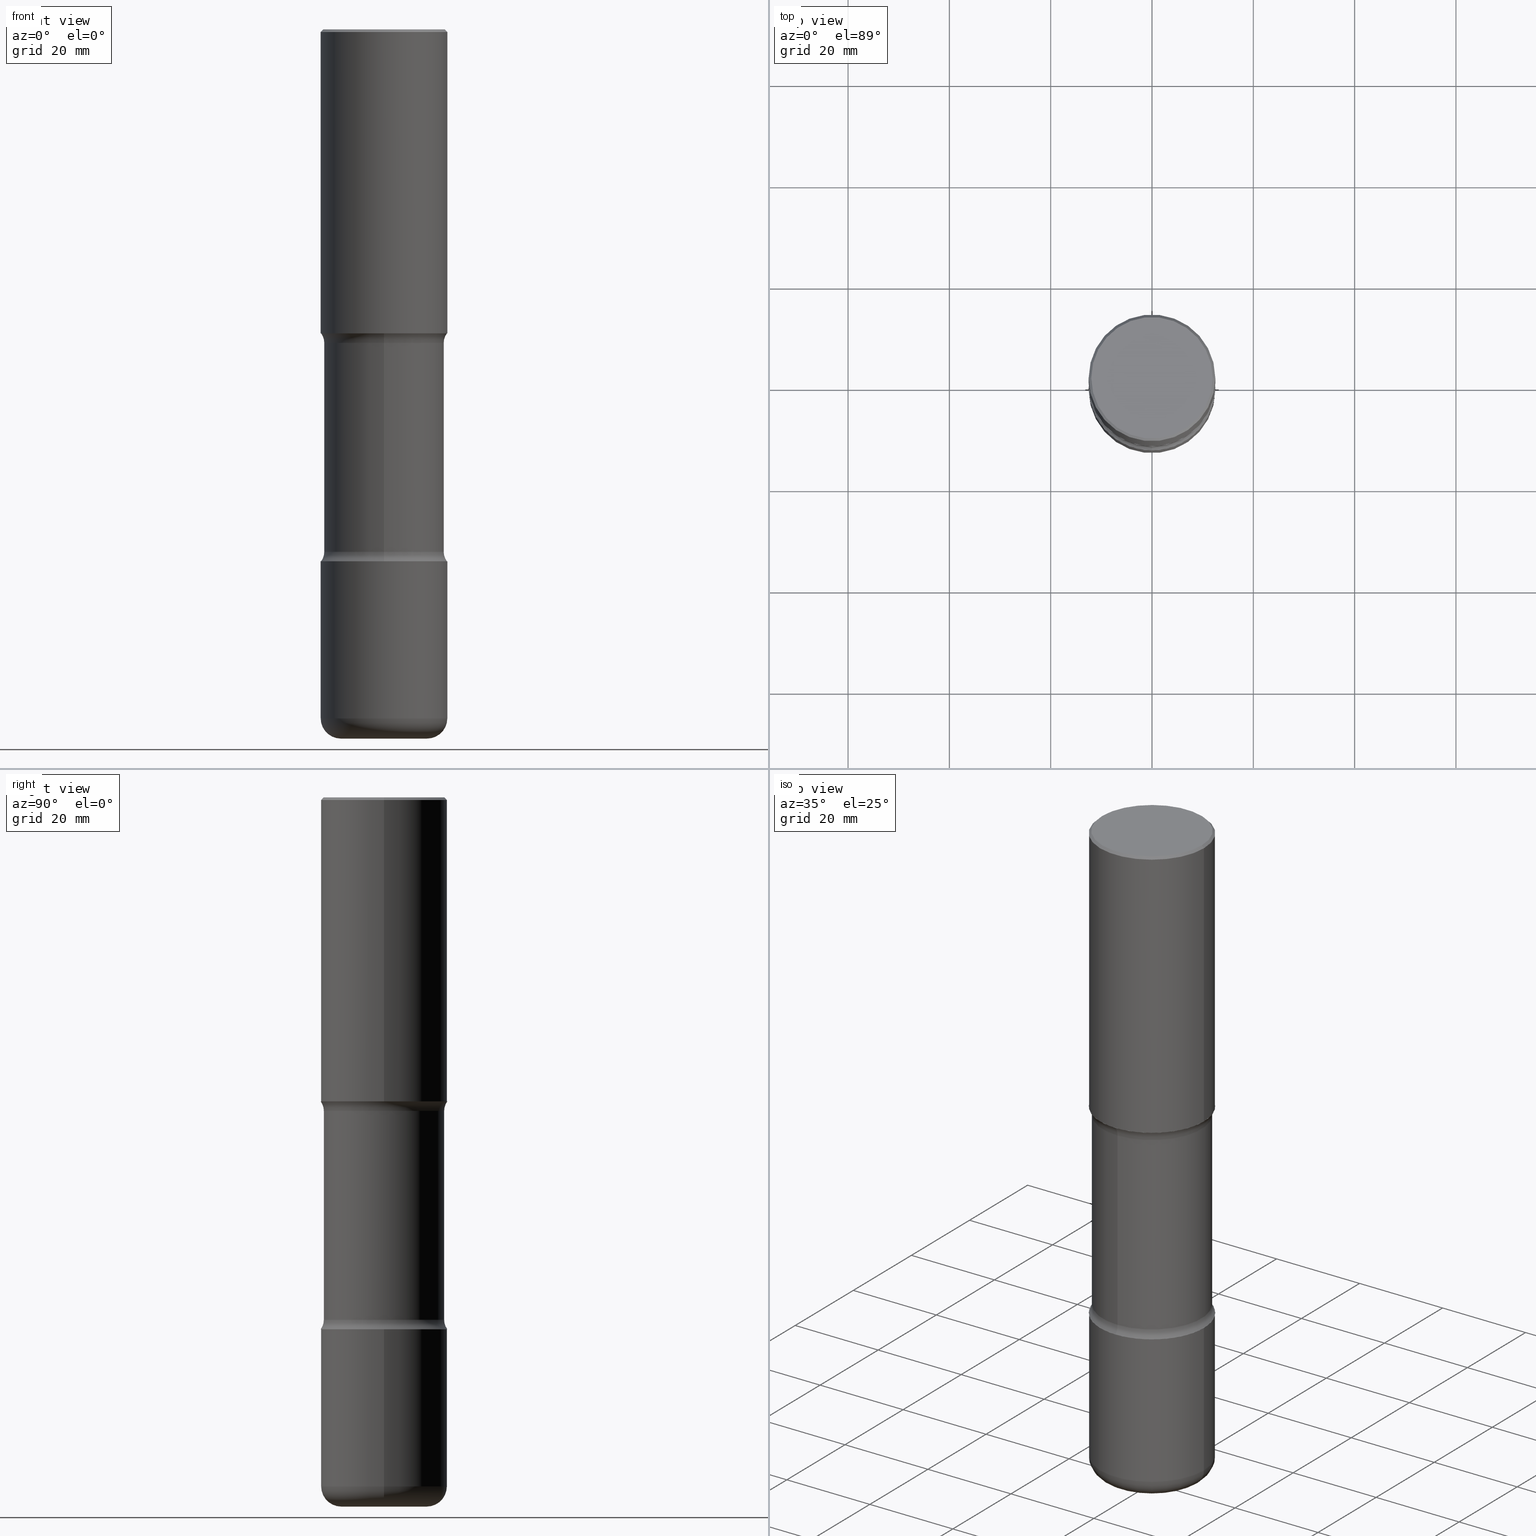
[diagram: canonical four-view strip — front | top / right | iso, engineering-drawing reading convention]
A machine part, canonical four-view strip (front | top / right | iso — engineering-drawing reading convention). The complete STEP part file that produces these views, byte-faithful:
ISO-10303-21;
HEADER;
FILE_DESCRIPTION (( 'STEP AP203' ),
    '1' );
FILE_NAME ('44695.STEP',
    '2024-03-02T02:36:05',
    ( '' ),
    ( '' ),
    'SwSTEP 2.0',
    'SolidWorks 2023',
    '' );
FILE_SCHEMA (( 'CONFIG_CONTROL_DESIGN' ));
ENDSEC;

DATA;
#1 = LINE ( 'NONE', #213, #54 ) ;
#2 = ORIENTED_EDGE ( 'NONE', *, *, #482, .F. ) ;
#3 = CARTESIAN_POINT ( 'NONE',  ( -3.291838451780624866E-15, -0.4675000000000141265, -4.059268949423745276 ) ) ;
#4 = VERTEX_POINT ( 'NONE', #79 ) ;
#5 = DIRECTION ( 'NONE',  ( -2.445468806185136597E-29, 3.491481338843145583E-15, 1.000000000000000000 ) ) ;
#6 = EDGE_CURVE ( 'NONE', #461, #4, #110, .T. ) ;
#7 = DIRECTION ( 'NONE',  ( 2.438088387897960049E-29, -3.491481338843145188E-15, -1.000000000000000000 ) ) ;
#8 = EDGE_CURVE ( 'NONE', #421, #188, #152, .T. ) ;
#9 = DATE_AND_TIME ( #314, #560 ) ;
#10 = AXIS2_PLACEMENT_3D ( 'NONE', #337, #134, #478 ) ;
#11 = CARTESIAN_POINT ( 'NONE',  ( -0.4721500000000000696, 3.331920641658002013E-15, 1.280553747027805488E-17 ) ) ;
#12 = AXIS2_PLACEMENT_3D ( 'NONE', #103, #187, #309 ) ;
#13 = CARTESIAN_POINT ( 'NONE',  ( 3.264535051818464504E-15, 0.4674999999999808198, -5.511800000000000921 ) ) ;
#14 = DIRECTION ( 'NONE',  ( 2.529115312138246887E-29, -3.371694781454833941E-15, -1.000000000000000000 ) ) ;
#15 = DIRECTION ( 'NONE',  ( 1.000000000000000000, -6.982962677686265922E-15, 0.000000000000000000 ) ) ;
#16 = PLANE ( 'NONE',  #338 ) ;
#17 = CIRCLE ( 'NONE', #355, 0.1250000000000001110 ) ;
#18 = FACE_OUTER_BOUND ( 'NONE', #189, .T. ) ;
#19 = VECTOR ( 'NONE', #485, 39.37007874015748143 ) ;
#20 = PERSON ( 'UNSPECIFIED', 'UNSPECIFIED', 'UNSPECIFIED', ('UNSPECIFIED'), ('UNSPECIFIED'), ('UNSPECIFIED') ) ;
#21 = DIRECTION ( 'NONE',  ( 1.000000000000000000, -6.982962677686265922E-15, 4.876176775795935793E-29 ) ) ;
#22 = DIRECTION ( 'NONE',  ( 1.000000000000000000, -6.860497997771530774E-15, 4.842265841865007537E-29 ) ) ;
#23 = VERTEX_POINT ( 'NONE', #102 ) ;
#24 = MANIFOLD_SOLID_BREP ( 'Body-Move/Copy2[2]', #336 ) ;
#25 = PLANE ( 'NONE',  #30 ) ;
#26 = EDGE_CURVE ( 'NONE', #72, #298, #401, .T. ) ;
#27 = ORIENTED_EDGE ( 'NONE', *, *, #455, .T. ) ;
#28 = AXIS2_PLACEMENT_3D ( 'NONE', #316, #226, #258 ) ;
#29 = ORIENTED_EDGE ( 'NONE', *, *, #304, .F. ) ;
#30 = AXIS2_PLACEMENT_3D ( 'NONE', #457, #118, #231 ) ;
#31 = MECHANICAL_CONTEXT ( 'NONE', #128, 'mechanical' ) ;
#32 = DIMENSIONAL_EXPONENTS ( 1.000000000000000000, 0.000000000000000000, 0.000000000000000000, 0.000000000000000000, 0.000000000000000000, 0.000000000000000000, 0.000000000000000000 ) ;
#33 = DATE_AND_TIME ( #463, #241 ) ;
#34 = DATE_AND_TIME ( #414, #412 ) ;
#35 = DIRECTION ( 'NONE',  ( -2.445468806185136597E-29, 3.491481338843145583E-15, 1.000000000000000000 ) ) ;
#36 = APPROVAL_PERSON_ORGANIZATION ( #80, #206, #193 ) ;
#37 = AXIS2_PLACEMENT_3D ( 'NONE', #524, #7, #165 ) ;
#38 =( GEOMETRIC_REPRESENTATION_CONTEXT ( 3 ) GLOBAL_UNCERTAINTY_ASSIGNED_CONTEXT ( ( #208 ) ) GLOBAL_UNIT_ASSIGNED_CONTEXT ( ( #408, #234, #544 ) ) REPRESENTATION_CONTEXT ( 'NONE', 'WORKASPACE' ) );
#39 = VERTEX_POINT ( 'NONE', #156 ) ;
#40 = EDGE_LOOP ( 'NONE', ( #425, #43, #214, #109 ) ) ;
#41 = EDGE_CURVE ( 'NONE', #541, #23, #17, .T. ) ;
#42 = DIRECTION ( 'NONE',  ( 6.982962677686266711E-15, 1.000000000000000000, -3.506115072082477581E-15 ) ) ;
#43 = ORIENTED_EDGE ( 'NONE', *, *, #507, .T. ) ;
#44 = DIRECTION ( 'NONE',  ( -0.7071067811865471286, 2.468850131082252722E-15, -0.7071067811865479058 ) ) ;
#45 = CARTESIAN_POINT ( 'NONE',  ( 1.359419985113462274E-28, -1.907928096735455584E-14, -5.511800000000000033 ) ) ;
#46 = AXIS2_PLACEMENT_3D ( 'NONE', #520, #557, #295 ) ;
#47 = EDGE_LOOP ( 'NONE', ( #229, #405, #546, #342 ) ) ;
#48 = CIRCLE ( 'NONE', #392, 0.4721500000000000696 ) ;
#49 = FACE_OUTER_BOUND ( 'NONE', #186, .T. ) ;
#50 = ORIENTED_EDGE ( 'NONE', *, *, #8, .F. ) ;
#51 = CARTESIAN_POINT ( 'NONE',  ( 0.3346500000000002806, -2.158119530352335944E-14, -5.511800000000000033 ) ) ;
#52 = CARTESIAN_POINT ( 'NONE',  ( 1.309377362895707575E-28, -1.869443853256785386E-14, -5.354300000000000281 ) ) ;
#53 = DIRECTION ( 'NONE',  ( 2.529115312138246887E-29, -3.371694781454833941E-15, -1.000000000000000000 ) ) ;
#54 = VECTOR ( 'NONE', #248, 39.37007874015748143 ) ;
#55 = CARTESIAN_POINT ( 'NONE',  ( -3.376394089603205408E-15, -0.4921500000000088582, -2.362199999999998301 ) ) ;
#56 = EDGE_CURVE ( 'NONE', #114, #211, #160, .T. ) ;
#57 = AXIS2_PLACEMENT_3D ( 'NONE', #396, #393, #15 ) ;
#58 = FACE_OUTER_BOUND ( 'NONE', #249, .T. ) ;
#59 = ORIENTED_EDGE ( 'NONE', *, *, #26, .F. ) ;
#60 = EDGE_CURVE ( 'NONE', #72, #339, #540, .T. ) ;
#61 = CARTESIAN_POINT ( 'NONE',  ( -0.3346500000000002806, -1.631660726734667620E-14, -5.354300000000000281 ) ) ;
#62 = DIRECTION ( 'NONE',  ( -1.000000000000000000, 6.982962677686265922E-15, 0.000000000000000000 ) ) ;
#63 = DIRECTION ( 'NONE',  ( -1.000000000000000000, 7.105427357601005014E-15, 0.000000000000000000 ) ) ;
#64 = DIRECTION ( 'NONE',  ( 6.982962677686266711E-15, 1.000000000000000000, -3.371694781454834335E-15 ) ) ;
#65 = LOCAL_TIME ( 21, 36, 5.000000000000000000, #481 ) ;
#66 = CYLINDRICAL_SURFACE ( 'NONE', #326, 0.4921500000000002539 ) ;
#67 = AXIS2_PLACEMENT_3D ( 'NONE', #418, #22, #366 ) ;
#68 = CARTESIAN_POINT ( 'NONE',  ( 5.628498264023999301E-29, -8.459791083684410313E-15, -2.362199999999999633 ) ) ;
#69 = CIRCLE ( 'NONE', #190, 0.1574999999999998346 ) ;
#70 = ORIENTED_EDGE ( 'NONE', *, *, #288, .F. ) ;
#71 = LENGTH_MEASURE_WITH_UNIT ( LENGTH_MEASURE( 0.02539999999999999897 ), #539 );
#72 = VERTEX_POINT ( 'NONE', #475 ) ;
#73 = EDGE_LOOP ( 'NONE', ( #91, #407, #367, #59 ) ) ;
#74 = CIRCLE ( 'NONE', #10, 0.1250000000000000278 ) ;
#75 = VECTOR ( 'NONE', #489, 39.37007874015748143 ) ;
#76 = APPROVAL_STATUS ( 'not_yet_approved' ) ;
#77 = ADVANCED_FACE ( 'NONE', ( #49 ), #217, .F. ) ;
#78 = APPLICATION_PROTOCOL_DEFINITION ( 'international standard', 'config_control_design', 1994, #128 ) ;
#79 = CARTESIAN_POINT ( 'NONE',  ( 0.4921500000000002539, -2.213110361439115437E-14, -5.354300000000000281 ) ) ;
#80 = PERSON_AND_ORGANIZATION ( #20, #218 ) ;
#81 = AXIS2_PLACEMENT_3D ( 'NONE', #45, #53, #376 ) ;
#82 = AXIS2_PLACEMENT_3D ( 'NONE', #277, #416, #505 ) ;
#83 = VERTEX_POINT ( 'NONE', #286 ) ;
#84 = DIRECTION ( 'NONE',  ( 1.000000000000000000, -6.982962677686266711E-15, 4.876176775795935232E-29 ) ) ;
#85 = PERSON_AND_ORGANIZATION_ROLE ( 'design_supplier' ) ;
#86 = FACE_OUTER_BOUND ( 'NONE', #283, .T. ) ;
#87 = ADVANCED_FACE ( 'NONE', ( #386 ), #325, .T. ) ;
#88 = DATE_TIME_ROLE ( 'creation_date' ) ;
#89 = EDGE_LOOP ( 'NONE', ( #126, #27, #253, #509 ) ) ;
#90 = FACE_OUTER_BOUND ( 'NONE', #452, .T. ) ;
#91 = ORIENTED_EDGE ( 'NONE', *, *, #455, .F. ) ;
#92 = LINE ( 'NONE', #519, #429 ) ;
#93 = DIRECTION ( 'NONE',  ( 2.529115312138246887E-29, -3.371694781454833941E-15, -1.000000000000000000 ) ) ;
#94 = APPROVAL_PERSON_ORGANIZATION ( #472, #184, #254 ) ;
#95 = ORIENTED_EDGE ( 'NONE', *, *, #245, .T. ) ;
#96 = AXIS2_PLACEMENT_3D ( 'NONE', #399, #445, #62 ) ;
#97 = CARTESIAN_POINT ( 'NONE',  ( -0.3346500000000002806, -1.603200901836949407E-14, -5.511800000000000033 ) ) ;
#98 = ORIENTED_EDGE ( 'NONE', *, *, #464, .T. ) ;
#99 = DIRECTION ( 'NONE',  ( -2.445468806185136877E-29, 3.491481338843145188E-15, 1.000000000000000000 ) ) ;
#100 = CARTESIAN_POINT ( 'NONE',  ( 0.000000000000000000, 0.000000000000000000, 0.000000000000000000 ) ) ;
#101 = FACE_OUTER_BOUND ( 'NONE', #89, .T. ) ;
#102 = CARTESIAN_POINT ( 'NONE',  ( 3.264535051818428216E-15, 0.4674999999999857048, -4.059268949423747941 ) ) ;
#103 = CARTESIAN_POINT ( 'NONE',  ( 1.010907895100811684E-28, -1.443308555850979562E-14, -4.133799999999999919 ) ) ;
#104 = AXIS2_PLACEMENT_3D ( 'NONE', #68, #269, #111 ) ;
#105 = CARTESIAN_POINT ( 'NONE',  ( 4.890937612370289799E-31, -6.982962677686315028E-17, -0.02000000000000006981 ) ) ;
#106 = DIRECTION ( 'NONE',  ( -2.445468806185136597E-29, 3.491481338843145583E-15, 1.000000000000000000 ) ) ;
#107 = CC_DESIGN_PERSON_AND_ORGANIZATION_ASSIGNMENT ( #275, #413, ( #276 ) ) ;
#108 = CARTESIAN_POINT ( 'NONE',  ( 5.816995885266152861E-29, -8.711087037968711425E-15, -2.436731050576253388 ) ) ;
#109 = ORIENTED_EDGE ( 'NONE', *, *, #464, .F. ) ;
#110 = CIRCLE ( 'NONE', #135, 0.4921500000000003094 ) ;
#111 = DIRECTION ( 'NONE',  ( 6.982962677686265922E-15, 1.000000000000000000, -3.330506545156063496E-15 ) ) ;
#112 = TOROIDAL_SURFACE ( 'NONE', #503, 0.5925000000000001377, 0.1250000000000001110 ) ;
#113 = EDGE_LOOP ( 'NONE', ( #150, #387 ) ) ;
#114 = VERTEX_POINT ( 'NONE', #97 ) ;
#115 = AXIS2_PLACEMENT_3D ( 'NONE', #244, #252, #434 ) ;
#116 = AXIS2_PLACEMENT_3D ( 'NONE', #428, #289, #130 ) ;
#117 = CIRCLE ( 'NONE', #116, 0.4921500000000002539 ) ;
#118 = DIRECTION ( 'NONE',  ( 2.438088387897960049E-29, -3.491481338843145188E-15, -1.000000000000000000 ) ) ;
#119 = APPROVAL_DATE_TIME ( #158, #206 ) ;
#120 = CARTESIAN_POINT ( 'NONE',  ( 4.137405386529212738E-15, 0.5924999999999858158, -4.059268949423748829 ) ) ;
#121 = ORIENTED_EDGE ( 'NONE', *, *, #41, .T. ) ;
#122 = EDGE_CURVE ( 'NONE', #461, #410, #1, .T. ) ;
#123 = ORIENTED_EDGE ( 'NONE', *, *, #551, .F. ) ;
#124 = CARTESIAN_POINT ( 'NONE',  ( 0.4921500000000002539, -1.168424230043857383E-14, -2.362199999999999633 ) ) ;
#125 = AXIS2_PLACEMENT_3D ( 'NONE', #108, #360, #263 ) ;
#126 = ORIENTED_EDGE ( 'NONE', *, *, #327, .F. ) ;
#127 = CARTESIAN_POINT ( 'NONE',  ( 1.347893496593123646E-28, -1.924434684343564878E-14, -5.511800000000000033 ) ) ;
#128 = APPLICATION_CONTEXT ( 'configuration controlled 3d designs of mechanical parts and assemblies' ) ;
#129 = ORIENTED_EDGE ( 'NONE', *, *, #56, .T. ) ;
#130 = DIRECTION ( 'NONE',  ( 1.000000000000000000, -6.982962677686263555E-15, 0.000000000000000000 ) ) ;
#131 = FACE_OUTER_BOUND ( 'NONE', #265, .T. ) ;
#132 = ORIENTED_EDGE ( 'NONE', *, *, #6, .T. ) ;
#133 = PLANE ( 'NONE',  #543 ) ;
#134 = DIRECTION ( 'NONE',  ( 1.000000000000000000, -6.860497997771530774E-15, 4.842265841865007537E-29 ) ) ;
#135 = AXIS2_PLACEMENT_3D ( 'NONE', #518, #251, #240 ) ;
#136 = CIRCLE ( 'NONE', #104, 0.4921500000000003650 ) ;
#137 = CARTESIAN_POINT ( 'NONE',  ( 9.920581329765965517E-29, -1.418178960422549608E-14, -4.059268949423747053 ) ) ;
#138 = EDGE_CURVE ( 'NONE', #421, #541, #522, .T. ) ;
#139 = DIRECTION ( 'NONE',  ( 2.529115312138246887E-29, -3.371694781454833941E-15, -1.000000000000000000 ) ) ;
#140 = CYLINDRICAL_SURFACE ( 'NONE', #533, 0.4921500000000001984 ) ;
#141 = DESIGN_CONTEXT ( 'detailed design', #243, 'design' ) ;
#142 = DIRECTION ( 'NONE',  ( -2.438088387897960049E-29, 3.491481338843145188E-15, 1.000000000000000000 ) ) ;
#143 = FACE_OUTER_BOUND ( 'NONE', #40, .T. ) ;
#144 = CIRCLE ( 'NONE', #12, 0.4921500000000001984 ) ;
#145 = CARTESIAN_POINT ( 'NONE',  ( 5.815876828890441734E-29, -8.712689590391461235E-15, -2.436731050576253388 ) ) ;
#146 = EDGE_LOOP ( 'NONE', ( #345, #330, #287, #553 ) ) ;
#147 = FACE_OUTER_BOUND ( 'NONE', #433, .T. ) ;
#148 = EDGE_LOOP ( 'NONE', ( #232, #451, #70, #123 ) ) ;
#149 = APPROVAL_DATE_TIME ( #34, #490 ) ;
#150 = ORIENTED_EDGE ( 'NONE', *, *, #224, .F. ) ;
#151 = DIRECTION ( 'NONE',  ( -6.982962677686266711E-15, -1.000000000000000000, 3.491481338843145583E-15 ) ) ;
#152 = CIRCLE ( 'NONE', #67, 0.1250000000000001110 ) ;
#153 = AXIS2_PLACEMENT_3D ( 'NONE', #547, #458, #365 ) ;
#154 = VERTEX_POINT ( 'NONE', #124 ) ;
#155 = ADVANCED_FACE ( 'NONE', ( #86 ), #436, .T. ) ;
#156 = CARTESIAN_POINT ( 'NONE',  ( 0.4721500000000000696, -3.342703923013975763E-15, 1.280553747032445131E-17 ) ) ;
#157 = ORIENTED_EDGE ( 'NONE', *, *, #138, .T. ) ;
#158 = DATE_AND_TIME ( #423, #162 ) ;
#159 = FACE_OUTER_BOUND ( 'NONE', #113, .T. ) ;
#160 = CIRCLE ( 'NONE', #372, 0.3346500000000002806 ) ;
#161 = VECTOR ( 'NONE', #488, 39.37007874015748143 ) ;
#162 = LOCAL_TIME ( 21, 36, 5.000000000000000000, #313 ) ;
#163 = ORIENTED_EDGE ( 'NONE', *, *, #200, .T. ) ;
#164 = ADVANCED_FACE ( 'NONE', ( #131 ), #346, .F. ) ;
#165 = DIRECTION ( 'NONE',  ( -1.000000000000000000, 6.982962677686265922E-15, -4.876176775795935793E-29 ) ) ;
#166 = PRODUCT_DEFINITION_SHAPE ( 'NONE', 'NONE',  #268 ) ;
#167 = ORIENTED_EDGE ( 'NONE', *, *, #329, .T. ) ;
#168 = DIRECTION ( 'NONE',  ( 6.982962677686266711E-15, 1.000000000000000000, -3.506115072082477581E-15 ) ) ;
#169 = CC_DESIGN_APPROVAL ( #490, ( #268 ) ) ;
#170 = EDGE_LOOP ( 'NONE', ( #29, #242 ) ) ;
#171 = DIRECTION ( 'NONE',  ( -2.445468806185136597E-29, 3.491481338843145583E-15, 1.000000000000000000 ) ) ;
#172 = EDGE_LOOP ( 'NONE', ( #2, #377 ) ) ;
#173 = LINE ( 'NONE', #344, #278 ) ;
#174 = ORIENTED_EDGE ( 'NONE', *, *, #245, .F. ) ;
#175 = DIRECTION ( 'NONE',  ( -1.000000000000000000, 6.982962677686265922E-15, 0.000000000000000000 ) ) ;
#176 = AXIS2_PLACEMENT_3D ( 'NONE', #341, #256, #430 ) ;
#177 = DIRECTION ( 'NONE',  ( 7.105427357601001859E-15, 1.000000000000000000, -3.491481338843145583E-15 ) ) ;
#178 = CARTESIAN_POINT ( 'NONE',  ( -3.207282813958053791E-15, -0.4675000000000189004, -5.511799999999999145 ) ) ;
#179 = DIRECTION ( 'NONE',  ( 6.982962677686265922E-15, 1.000000000000000000, -2.337410048054985186E-15 ) ) ;
#180 = DIRECTION ( 'NONE',  ( -2.529115312138246887E-29, 3.371694781454833546E-15, 1.000000000000000000 ) ) ;
#181 = TOROIDAL_SURFACE ( 'NONE', #28, 0.3346500000000002806, 0.1574999999999998346 ) ;
#182 = CIRCLE ( 'NONE', #373, 0.4921500000000001984 ) ;
#183 = DIRECTION ( 'NONE',  ( -2.445468806185136597E-29, 3.491481338843145583E-15, 1.000000000000000000 ) ) ;
#184 = APPROVAL ( #517, 'UNSPECIFIED' ) ;
#185 = CYLINDRICAL_SURFACE ( 'NONE', #227, 0.4921500000000001984 ) ;
#186 = EDGE_LOOP ( 'NONE', ( #442, #538, #270, #555 ) ) ;
#187 = DIRECTION ( 'NONE',  ( -2.445468806185136597E-29, 3.491481338843145583E-15, 1.000000000000000000 ) ) ;
#188 = VERTEX_POINT ( 'NONE', #3 ) ;
#189 = EDGE_LOOP ( 'NONE', ( #370, #492, #98, #427 ) ) ;
#190 = AXIS2_PLACEMENT_3D ( 'NONE', #280, #151, #237 ) ;
#191 = ORIENTED_EDGE ( 'NONE', *, *, #385, .T. ) ;
#192 = DIRECTION ( 'NONE',  ( -2.445468806185136597E-29, 3.491481338843145583E-15, 1.000000000000000000 ) ) ;
#193 = APPROVAL_ROLE ( '' ) ;
#194 = SECURITY_CLASSIFICATION_LEVEL ( 'unclassified' ) ;
#195 = MANIFOLD_SOLID_BREP ( 'Body-Move/Copy2[1]', #391 ) ;
#196 = APPLICATION_PROTOCOL_DEFINITION ( 'international standard', 'config_control_design', 1994, #243 ) ;
#197 = MANIFOLD_SOLID_BREP ( 'Body-Move/Copy2[4]', #296 ) ;
#198 = CONICAL_SURFACE ( 'NONE', #96, 0.4921500000000000874, 0.7853981633974477239 ) ;
#199 = EDGE_LOOP ( 'NONE', ( #473, #163 ) ) ;
#200 = EDGE_CURVE ( 'NONE', #39, #508, #285, .T. ) ;
#201 = CALENDAR_DATE ( 2024, 1, 3 ) ;
#202 = ORIENTED_EDGE ( 'NONE', *, *, #447, .T. ) ;
#203 = CARTESIAN_POINT ( 'NONE',  ( -3.131554243005659264E-46, 4.471029511141341874E-32, 1.280553747030123384E-17 ) ) ;
#204 = ADVANCED_FACE ( 'NONE', ( #215 ), #205, .F. ) ;
#205 = PLANE ( 'NONE',  #37 ) ;
#206 = APPROVAL ( #284, 'UNSPECIFIED' ) ;
#207 = ORIENTED_EDGE ( 'NONE', *, *, #361, .F. ) ;
#208 = UNCERTAINTY_MEASURE_WITH_UNIT (LENGTH_MEASURE( 1.000000000000000082E-05 ), #408, 'distance_accuracy_value', 'NONE');
#209 = AXIS2_PLACEMENT_3D ( 'NONE', #394, #529, #420 ) ;
#210 = AXIS2_PLACEMENT_3D ( 'NONE', #528, #531, #449 ) ;
#211 = VERTEX_POINT ( 'NONE', #51 ) ;
#212 = FACE_OUTER_BOUND ( 'NONE', #383, .T. ) ;
#213 = CARTESIAN_POINT ( 'NONE',  ( -0.4921500000000002539, 3.496936074043334869E-15, -2.420853904668952910E-29 ) ) ;
#214 = ORIENTED_EDGE ( 'NONE', *, *, #404, .F. ) ;
#215 = FACE_OUTER_BOUND ( 'NONE', #199, .T. ) ;
#216 = DIRECTION ( 'NONE',  ( 6.982962677686266711E-15, 1.000000000000000000, -3.330506545156064679E-15 ) ) ;
#217 = TOROIDAL_SURFACE ( 'NONE', #532, 0.5925000000000001377, 0.1250000000000001110 ) ;
#218 = ORGANIZATION ( 'UNSPECIFIED', 'UNSPECIFIED', '' ) ;
#219 = CARTESIAN_POINT ( 'NONE',  ( 0.000000000000000000, 0.000000000000000000, 0.000000000000000000 ) ) ;
#220 = ORIENTED_EDGE ( 'NONE', *, *, #438, .T. ) ;
#221 = CARTESIAN_POINT ( 'NONE',  ( 9.879124610279509049E-29, -1.424115798610003816E-14, -4.059268949423747053 ) ) ;
#222 = CARTESIAN_POINT ( 'NONE',  ( -3.291838451780669043E-15, -0.4675000000000086864, -2.436731050576252056 ) ) ;
#223 = EDGE_CURVE ( 'NONE', #188, #23, #510, .T. ) ;
#224 = EDGE_CURVE ( 'NONE', #211, #114, #347, .T. ) ;
#225 = LINE ( 'NONE', #13, #19 ) ;
#226 = DIRECTION ( 'NONE',  ( -2.445468806185136597E-29, 3.491481338843145583E-15, 1.000000000000000000 ) ) ;
#227 = AXIS2_PLACEMENT_3D ( 'NONE', #358, #5, #84 ) ;
#228 = DIRECTION ( 'NONE',  ( 1.000000000000000000, -6.982962677686266711E-15, 4.876176775795935793E-29 ) ) ;
#229 = ORIENTED_EDGE ( 'NONE', *, *, #200, .F. ) ;
#230 = ORIENTED_EDGE ( 'NONE', *, *, #363, .F. ) ;
#231 = DIRECTION ( 'NONE',  ( -1.000000000000000000, 6.982962677686265922E-15, -4.876176775795935793E-29 ) ) ;
#232 = ORIENTED_EDGE ( 'NONE', *, *, #224, .T. ) ;
#233 = EDGE_CURVE ( 'NONE', #4, #322, #173, .T. ) ;
#234 =( NAMED_UNIT ( * ) PLANE_ANGLE_UNIT ( ) SI_UNIT ( $, .RADIAN. ) );
#235 = AXIS2_PLACEMENT_3D ( 'NONE', #424, #292, #379 ) ;
#236 = PERSON_AND_ORGANIZATION_ROLE ( 'creator' ) ;
#237 = DIRECTION ( 'NONE',  ( 1.000000000000000000, -6.982962677686269866E-15, 0.000000000000000000 ) ) ;
#238 = ADVANCED_BREP_SHAPE_REPRESENTATION ( '44695', ( #195, #24, #197, #153 ), #38 ) ;
#239 = APPROVAL_DATE_TIME ( #331, #184 ) ;
#240 = DIRECTION ( 'NONE',  ( 1.000000000000000000, -6.982962677686269866E-15, 0.000000000000000000 ) ) ;
#241 = LOCAL_TIME ( 21, 36, 5.000000000000000000, #506 ) ;
#242 = ORIENTED_EDGE ( 'NONE', *, *, #409, .F. ) ;
#243 = APPLICATION_CONTEXT ( 'configuration controlled 3d designs of mechanical parts and assemblies' ) ;
#244 = CARTESIAN_POINT ( 'NONE',  ( 1.010907895100811684E-28, -1.443308555850979562E-14, -4.133799999999999919 ) ) ;
#245 = EDGE_CURVE ( 'NONE', #23, #188, #419, .T. ) ;
#246 = ORIENTED_EDGE ( 'NONE', *, *, #233, .T. ) ;
#247 = CARTESIAN_POINT ( 'NONE',  ( -0.4921500000000003094, -6.617673486527344239E-16, -2.362199999999999633 ) ) ;
#248 = DIRECTION ( 'NONE',  ( -2.445468806185136877E-29, 3.491481338843145188E-15, 1.000000000000000000 ) ) ;
#249 = EDGE_LOOP ( 'NONE', ( #293, #476, #282, #465 ) ) ;
#250 = DIRECTION ( 'NONE',  ( 1.000000000000000000, -6.982962677686266711E-15, 4.876176775795935793E-29 ) ) ;
#251 = DIRECTION ( 'NONE',  ( -2.445468806185136597E-29, 3.491481338843145583E-15, 1.000000000000000000 ) ) ;
#252 = DIRECTION ( 'NONE',  ( 2.529115312138246887E-29, -3.371694781454833941E-15, -1.000000000000000000 ) ) ;
#253 = ORIENTED_EDGE ( 'NONE', *, *, #471, .T. ) ;
#254 = APPROVAL_ROLE ( '' ) ;
#255 = EDGE_CURVE ( 'NONE', #339, #454, #74, .T. ) ;
#256 = DIRECTION ( 'NONE',  ( 2.438088387897960049E-29, -3.491481338843145188E-15, -1.000000000000000000 ) ) ;
#257 = CARTESIAN_POINT ( 'NONE',  ( -3.376394089603158865E-15, -0.4921500000000145758, -4.133799999999998143 ) ) ;
#258 = DIRECTION ( 'NONE',  ( 1.000000000000000000, -6.982962677686264344E-15, 4.883557194083111780E-29 ) ) ;
#259 = AXIS2_PLACEMENT_3D ( 'NONE', #127, #388, #513 ) ;
#260 = APPROVAL_PERSON_ORGANIZATION ( #498, #490, #272 ) ;
#261 = FACE_OUTER_BOUND ( 'NONE', #148, .T. ) ;
#262 = DIRECTION ( 'NONE',  ( -2.445468806185136597E-29, 3.491481338843145583E-15, 1.000000000000000000 ) ) ;
#263 = DIRECTION ( 'NONE',  ( 6.982962677686266711E-15, 1.000000000000000000, -3.506115072082477581E-15 ) ) ;
#264 = DIRECTION ( 'NONE',  ( 6.982962677686265133E-15, 1.000000000000000000, -3.371694781454833546E-15 ) ) ;
#265 = EDGE_LOOP ( 'NONE', ( #202, #220 ) ) ;
#266 = AXIS2_PLACEMENT_3D ( 'NONE', #100, #171, #250 ) ;
#267 = PERSON_AND_ORGANIZATION_ROLE ( 'creator' ) ;
#268 = PRODUCT_DEFINITION ( 'UNKNOWN', '', #439, #141 ) ;
#269 = DIRECTION ( 'NONE',  ( 2.529115312138246887E-29, -3.371694781454833941E-15, -1.000000000000000000 ) ) ;
#270 = ORIENTED_EDGE ( 'NONE', *, *, #223, .T. ) ;
#271 = ADVANCED_FACE ( 'NONE', ( #90 ), #554, .T. ) ;
#272 = APPROVAL_ROLE ( '' ) ;
#273 = ADVANCED_FACE ( 'NONE', ( #332 ), #354, .F. ) ;
#274 = ORIENTED_EDGE ( 'NONE', *, *, #406, .F. ) ;
#275 = PERSON_AND_ORGANIZATION ( #20, #218 ) ;
#276 = SECURITY_CLASSIFICATION ( '', '', #194 ) ;
#277 = CARTESIAN_POINT ( 'NONE',  ( 5.776686413970529753E-29, -8.247577218615278049E-15, -2.362199999999999633 ) ) ;
#278 = VECTOR ( 'NONE', #426, 39.37007874015748143 ) ;
#279 = ADVANCED_FACE ( 'NONE', ( #537 ), #181, .T. ) ;
#280 = CARTESIAN_POINT ( 'NONE',  ( 0.3346500000000002806, -2.103128699265556452E-14, -5.354300000000000281 ) ) ;
#281 = SHAPE_DEFINITION_REPRESENTATION ( #166, #238 ) ;
#282 = ORIENTED_EDGE ( 'NONE', *, *, #26, .T. ) ;
#283 = EDGE_LOOP ( 'NONE', ( #291, #132, #246, #380 ) ) ;
#284 = APPROVAL_STATUS ( 'not_yet_approved' ) ;
#285 = CIRCLE ( 'NONE', #235, 0.4721500000000000696 ) ;
#286 = CARTESIAN_POINT ( 'NONE',  ( -0.4921500000000000874, 3.366835455046433267E-15, -0.02000000000000006981 ) ) ;
#287 = ORIENTED_EDGE ( 'NONE', *, *, #447, .F. ) ;
#288 = EDGE_CURVE ( 'NONE', #4, #461, #559, .T. ) ;
#289 = DIRECTION ( 'NONE',  ( -2.445468806185136597E-29, 3.491481338843145583E-15, 1.000000000000000000 ) ) ;
#290 = DIRECTION ( 'NONE',  ( 2.529115312138246887E-29, -3.371694781454833941E-15, -1.000000000000000000 ) ) ;
#291 = ORIENTED_EDGE ( 'NONE', *, *, #122, .F. ) ;
#292 = DIRECTION ( 'NONE',  ( -2.445468806185136597E-29, 3.491481338843145583E-15, 1.000000000000000000 ) ) ;
#293 = ORIENTED_EDGE ( 'NONE', *, *, #255, .F. ) ;
#294 = CARTESIAN_POINT ( 'NONE',  ( 1.010907895100811684E-28, -1.443308555850979562E-14, -4.133799999999999919 ) ) ;
#295 = DIRECTION ( 'NONE',  ( 6.982962677686266711E-15, 1.000000000000000000, -3.506115072082477581E-15 ) ) ;
#296 = CLOSED_SHELL ( 'NONE', ( #271, #77, #273, #299, #542, #395, #443, #460 ) ) ;
#297 = AXIS2_PLACEMENT_3D ( 'NONE', #52, #192, #315 ) ;
#298 = VERTEX_POINT ( 'NONE', #494 ) ;
#299 = ADVANCED_FACE ( 'NONE', ( #58 ), #502, .F. ) ;
#300 = CARTESIAN_POINT ( 'NONE',  ( -0.4921500000000001984, 3.496936074043334475E-15, -2.420853904668952630E-29 ) ) ;
#301 = ADVANCED_FACE ( 'NONE', ( #143 ), #140, .T. ) ;
#302 = DIRECTION ( 'NONE',  ( 6.982962677686265922E-15, 1.000000000000000000, -3.330506545156063496E-15 ) ) ;
#303 = DIRECTION ( 'NONE',  ( 1.000000000000000000, -6.982962677686269866E-15, 0.000000000000000000 ) ) ;
#304 = EDGE_CURVE ( 'NONE', #298, #454, #136, .T. ) ;
#305 = CARTESIAN_POINT ( 'NONE',  ( 5.776686413970529753E-29, -8.247577218615278049E-15, -2.362199999999999633 ) ) ;
#306 = DIRECTION ( 'NONE',  ( -2.445468806185136597E-29, 3.491481338843145583E-15, 1.000000000000000000 ) ) ;
#307 = AXIS2_PLACEMENT_3D ( 'NONE', #440, #526, #303 ) ;
#308 = CIRCLE ( 'NONE', #57, 0.4921500000000000874 ) ;
#309 = DIRECTION ( 'NONE',  ( 1.000000000000000000, -6.982962677686267499E-15, 0.000000000000000000 ) ) ;
#310 = FACE_OUTER_BOUND ( 'NONE', #146, .T. ) ;
#311 = DIRECTION ( 'NONE',  ( 1.000000000000000000, -6.982962677686265922E-15, 0.000000000000000000 ) ) ;
#312 = ORIENTED_EDGE ( 'NONE', *, *, #471, .F. ) ;
#313 = COORDINATED_UNIVERSAL_TIME_OFFSET ( 5, 0, .BEHIND. ) ;
#314 = CALENDAR_DATE ( 2024, 1, 3 ) ;
#315 = DIRECTION ( 'NONE',  ( 1.000000000000000000, -6.982962677686264344E-15, 4.883557194083111780E-29 ) ) ;
#316 = CARTESIAN_POINT ( 'NONE',  ( 1.309377362895707575E-28, -1.869443853256785386E-14, -5.354300000000000281 ) ) ;
#317 = ORIENTED_EDGE ( 'NONE', *, *, #60, .T. ) ;
#318 = AXIS2_PLACEMENT_3D ( 'NONE', #437, #448, #179 ) ;
#319 = EDGE_LOOP ( 'NONE', ( #230, #207, #191, #167 ) ) ;
#320 = PLANE ( 'NONE',  #82 ) ;
#321 = DIRECTION ( 'NONE',  ( 1.000000000000000000, -6.982962677686261977E-15, 0.000000000000000000 ) ) ;
#322 = VERTEX_POINT ( 'NONE', #390 ) ;
#323 = PERSON_AND_ORGANIZATION ( #20, #218 ) ;
#324 = FACE_OUTER_BOUND ( 'NONE', #170, .T. ) ;
#325 = CONICAL_SURFACE ( 'NONE', #450, 0.4921500000000000874, 0.7853981633974477239 ) ;
#326 = AXIS2_PLACEMENT_3D ( 'NONE', #219, #106, #228 ) ;
#327 = EDGE_CURVE ( 'NONE', #339, #188, #486, .T. ) ;
#328 = PERSON_AND_ORGANIZATION ( #20, #218 ) ;
#329 = EDGE_CURVE ( 'NONE', #83, #362, #431, .T. ) ;
#330 = ORIENTED_EDGE ( 'NONE', *, *, #122, .T. ) ;
#331 = DATE_AND_TIME ( #201, #65 ) ;
#332 = FACE_OUTER_BOUND ( 'NONE', #73, .T. ) ;
#333 = PRODUCT ( '44695', '44695', '', ( #31 ) ) ;
#334 = ADVANCED_FACE ( 'NONE', ( #350 ), #198, .T. ) ;
#335 = ORIENTED_EDGE ( 'NONE', *, *, #6, .F. ) ;
#336 = CLOSED_SHELL ( 'NONE', ( #301, #334, #87, #204, #474, #343 ) ) ;
#337 = CARTESIAN_POINT ( 'NONE',  ( -4.064845063679573728E-15, -0.5925000000000086864, -2.436731050576251612 ) ) ;
#338 = AXIS2_PLACEMENT_3D ( 'NONE', #527, #142, #21 ) ;
#339 = VERTEX_POINT ( 'NONE', #222 ) ;
#340 = CARTESIAN_POINT ( 'NONE',  ( 0.4921500000000000874, -3.446223716380123532E-15, -0.02000000000000006981 ) ) ;
#341 = CARTESIAN_POINT ( 'NONE',  ( 1.010907895100811684E-28, -1.443308555850979562E-14, -4.133799999999999919 ) ) ;
#342 = ORIENTED_EDGE ( 'NONE', *, *, #385, .F. ) ;
#343 = ADVANCED_FACE ( 'NONE', ( #18 ), #185, .T. ) ;
#344 = CARTESIAN_POINT ( 'NONE',  ( 0.4921500000000002539, -3.436665081823297749E-15, 2.399810400207971004E-29 ) ) ;
#345 = ORIENTED_EDGE ( 'NONE', *, *, #288, .T. ) ;
#346 = PLANE ( 'NONE',  #176 ) ;
#347 = CIRCLE ( 'NONE', #259, 0.3346500000000002806 ) ;
#348 = AXIS2_PLACEMENT_3D ( 'NONE', #61, #177, #63 ) ;
#349 = CARTESIAN_POINT ( 'NONE',  ( 1.010907895100811684E-28, -1.443308555850979562E-14, -4.133799999999999919 ) ) ;
#350 = FACE_OUTER_BOUND ( 'NONE', #47, .T. ) ;
#351 = LINE ( 'NONE', #403, #161 ) ;
#352 = DIRECTION ( 'NONE',  ( -2.445468806185136597E-29, 3.491481338843145583E-15, 1.000000000000000000 ) ) ;
#353 = DIRECTION ( 'NONE',  ( 1.000000000000000000, -6.982962677686266711E-15, 4.876176775795935232E-29 ) ) ;
#354 = TOROIDAL_SURFACE ( 'NONE', #368, 0.5924999999999999156, 0.1250000000000000278 ) ;
#355 = AXIS2_PLACEMENT_3D ( 'NONE', #120, #417, #374 ) ;
#356 = VECTOR ( 'NONE', #515, 39.37007874015748143 ) ;
#357 = DIRECTION ( 'NONE',  ( 1.000000000000000000, -6.982962677686263555E-15, 0.000000000000000000 ) ) ;
#358 = CARTESIAN_POINT ( 'NONE',  ( 0.000000000000000000, 0.000000000000000000, 0.000000000000000000 ) ) ;
#359 = CC_DESIGN_PERSON_AND_ORGANIZATION_ASSIGNMENT ( #323, #500, ( #333 ) ) ;
#360 = DIRECTION ( 'NONE',  ( 2.529115312138246887E-29, -3.371694781454833941E-15, -1.000000000000000000 ) ) ;
#361 = EDGE_CURVE ( 'NONE', #508, #39, #48, .T. ) ;
#362 = VERTEX_POINT ( 'NONE', #340 ) ;
#363 = EDGE_CURVE ( 'NONE', #39, #362, #378, .T. ) ;
#364 = EDGE_CURVE ( 'NONE', #375, #154, #117, .T. ) ;
#365 = DIRECTION ( 'NONE',  ( 1.000000000000000000, 0.000000000000000000, 0.000000000000000000 ) ) ;
#366 = DIRECTION ( 'NONE',  ( 6.860497997771531562E-15, 1.000000000000000000, 0.000000000000000000 ) ) ;
#367 = ORIENTED_EDGE ( 'NONE', *, *, #409, .T. ) ;
#368 = AXIS2_PLACEMENT_3D ( 'NONE', #145, #14, #64 ) ;
#369 = CIRCLE ( 'NONE', #382, 0.4921500000000001984 ) ;
#370 = ORIENTED_EDGE ( 'NONE', *, *, #507, .F. ) ;
#371 = COORDINATED_UNIVERSAL_TIME_OFFSET ( 5, 0, .BEHIND. ) ;
#372 = AXIS2_PLACEMENT_3D ( 'NONE', #453, #35, #321 ) ;
#373 = AXIS2_PLACEMENT_3D ( 'NONE', #349, #530, #216 ) ;
#374 = DIRECTION ( 'NONE',  ( -6.982962677686264344E-15, -1.000000000000000000, 0.000000000000000000 ) ) ;
#375 = VERTEX_POINT ( 'NONE', #247 ) ;
#376 = DIRECTION ( 'NONE',  ( 6.982962677686265922E-15, 1.000000000000000000, -2.337410048054985186E-15 ) ) ;
#377 = ORIENTED_EDGE ( 'NONE', *, *, #364, .F. ) ;
#378 = LINE ( 'NONE', #556, #356 ) ;
#379 = DIRECTION ( 'NONE',  ( 1.000000000000000000, -6.982962677686266711E-15, 4.876006802227158492E-29 ) ) ;
#380 = ORIENTED_EDGE ( 'NONE', *, *, #438, .F. ) ;
#381 = CARTESIAN_POINT ( 'NONE',  ( 4.890937612370289799E-31, -6.982962677686315028E-17, -0.02000000000000006981 ) ) ;
#382 = AXIS2_PLACEMENT_3D ( 'NONE', #479, #352, #525 ) ;
#383 = EDGE_LOOP ( 'NONE', ( #496, #157 ) ) ;
#384 = CC_DESIGN_DATE_AND_TIME_ASSIGNMENT ( #9, #88, ( #268 ) ) ;
#385 = EDGE_CURVE ( 'NONE', #508, #83, #92, .T. ) ;
#386 = FACE_OUTER_BOUND ( 'NONE', #319, .T. ) ;
#387 = ORIENTED_EDGE ( 'NONE', *, *, #56, .F. ) ;
#388 = DIRECTION ( 'NONE',  ( -2.445468806185136597E-29, 3.491481338843145583E-15, 1.000000000000000000 ) ) ;
#389 = CARTESIAN_POINT ( 'NONE',  ( 5.628498264023999301E-29, -8.459791083684410313E-15, -2.362199999999999633 ) ) ;
#390 = CARTESIAN_POINT ( 'NONE',  ( 0.4921500000000001984, -1.786975064033309297E-14, -4.133799999999999919 ) ) ;
#391 = CLOSED_SHELL ( 'NONE', ( #462, #512, #545, #279, #155, #164 ) ) ;
#392 = AXIS2_PLACEMENT_3D ( 'NONE', #203, #511, #422 ) ;
#393 = DIRECTION ( 'NONE',  ( -2.445468806185136597E-29, 3.491481338843145583E-15, 1.000000000000000000 ) ) ;
#394 = CARTESIAN_POINT ( 'NONE',  ( 4.137405386529170928E-15, 0.5924999999999912559, -2.436731050576255164 ) ) ;
#395 = ADVANCED_FACE ( 'NONE', ( #212 ), #133, .F. ) ;
#396 = CARTESIAN_POINT ( 'NONE',  ( 4.890937612370289799E-31, -6.982962677686315028E-17, -0.02000000000000006981 ) ) ;
#397 = FACE_OUTER_BOUND ( 'NONE', #172, .T. ) ;
#398 = PRODUCT_RELATED_PRODUCT_CATEGORY ( 'detail', '', ( #333 ) ) ;
#399 = CARTESIAN_POINT ( 'NONE',  ( 4.890937612370289799E-31, -6.982962677686315028E-17, -0.02000000000000006981 ) ) ;
#400 = CC_DESIGN_APPROVAL ( #206, ( #276 ) ) ;
#401 = CIRCLE ( 'NONE', #209, 0.1250000000000000278 ) ;
#402 = CIRCLE ( 'NONE', #125, 0.4674999999999999156 ) ;
#403 = CARTESIAN_POINT ( 'NONE',  ( 0.4921500000000001984, -3.436665081823297354E-15, 2.399810400207970443E-29 ) ) ;
#404 = EDGE_CURVE ( 'NONE', #362, #83, #308, .T. ) ;
#405 = ORIENTED_EDGE ( 'NONE', *, *, #363, .T. ) ;
#406 = EDGE_CURVE ( 'NONE', #114, #461, #487, .T. ) ;
#407 = ORIENTED_EDGE ( 'NONE', *, *, #255, .T. ) ;
#408 =( CONVERSION_BASED_UNIT ( 'INCH', #71 ) LENGTH_UNIT ( ) NAMED_UNIT ( #32 ) );
#409 = EDGE_CURVE ( 'NONE', #454, #298, #497, .T. ) ;
#410 = VERTEX_POINT ( 'NONE', #534 ) ;
#411 = CC_DESIGN_DATE_AND_TIME_ASSIGNMENT ( #33, #415, ( #276 ) ) ;
#412 = LOCAL_TIME ( 21, 36, 5.000000000000000000, #371 ) ;
#413 = PERSON_AND_ORGANIZATION_ROLE ( 'classification_officer' ) ;
#414 = CALENDAR_DATE ( 2024, 1, 3 ) ;
#415 = DATE_TIME_ROLE ( 'classification_date' ) ;
#416 = DIRECTION ( 'NONE',  ( 2.529115312138246887E-29, -3.371694781454833546E-15, -1.000000000000000000 ) ) ;
#417 = DIRECTION ( 'NONE',  ( -1.000000000000000000, 6.982962677686265922E-15, -4.883557194083112340E-29 ) ) ;
#418 = CARTESIAN_POINT ( 'NONE',  ( -4.064845063679533496E-15, -0.5925000000000143485, -4.059268949423744388 ) ) ;
#419 = CIRCLE ( 'NONE', #46, 0.4674999999999999156 ) ;
#420 = DIRECTION ( 'NONE',  ( -6.982962677686265133E-15, -1.000000000000000000, 0.000000000000000000 ) ) ;
#421 = VERTEX_POINT ( 'NONE', #257 ) ;
#422 = DIRECTION ( 'NONE',  ( 1.000000000000000000, -6.982962677686266711E-15, 4.876006802227158492E-29 ) ) ;
#423 = CALENDAR_DATE ( 2024, 1, 3 ) ;
#424 = CARTESIAN_POINT ( 'NONE',  ( -3.131554243005659264E-46, 4.471029511141341874E-32, 1.280553747030123384E-17 ) ) ;
#425 = ORIENTED_EDGE ( 'NONE', *, *, #482, .T. ) ;
#426 = DIRECTION ( 'NONE',  ( -2.445468806185136877E-29, 3.491481338843145188E-15, 1.000000000000000000 ) ) ;
#427 = ORIENTED_EDGE ( 'NONE', *, *, #329, .F. ) ;
#428 = CARTESIAN_POINT ( 'NONE',  ( 5.776686413970529753E-29, -8.247577218615278049E-15, -2.362199999999999633 ) ) ;
#429 = VECTOR ( 'NONE', #44, 39.37007874015748143 ) ;
#430 = DIRECTION ( 'NONE',  ( -1.000000000000000000, 6.982962677686265922E-15, -4.876176775795935793E-29 ) ) ;
#431 = CIRCLE ( 'NONE', #456, 0.4921500000000000874 ) ;
#432 = EDGE_CURVE ( 'NONE', #541, #421, #182, .T. ) ;
#433 = EDGE_LOOP ( 'NONE', ( #50, #558, #121, #95 ) ) ;
#434 = DIRECTION ( 'NONE',  ( 6.982962677686266711E-15, 1.000000000000000000, -3.330506545156064679E-15 ) ) ;
#435 = DIRECTION ( 'NONE',  ( 2.529115312138246887E-29, -3.371694781454833941E-15, -1.000000000000000000 ) ) ;
#436 = CYLINDRICAL_SURFACE ( 'NONE', #266, 0.4921500000000002539 ) ;
#437 = CARTESIAN_POINT ( 'NONE',  ( 1.359419985113462274E-28, -1.907928096735455584E-14, -5.511800000000000033 ) ) ;
#438 = EDGE_CURVE ( 'NONE', #410, #322, #369, .T. ) ;
#439 = PRODUCT_DEFINITION_FORMATION_WITH_SPECIFIED_SOURCE ( 'ANY', '', #333, .NOT_KNOWN. ) ;
#440 = CARTESIAN_POINT ( 'NONE',  ( 1.309377362895707575E-28, -1.869443853256785386E-14, -5.354300000000000281 ) ) ;
#441 = VECTOR ( 'NONE', #99, 39.37007874015748143 ) ;
#442 = ORIENTED_EDGE ( 'NONE', *, *, #138, .F. ) ;
#443 = ADVANCED_FACE ( 'NONE', ( #147 ), #112, .F. ) ;
#444 = CARTESIAN_POINT ( 'NONE',  ( 3.436665081823398329E-15, 0.4921499999999857100, -4.133800000000001695 ) ) ;
#445 = DIRECTION ( 'NONE',  ( 2.445468806185136597E-29, -3.491481338843145583E-15, -1.000000000000000000 ) ) ;
#446 = CARTESIAN_POINT ( 'NONE',  ( -0.4921500000000002539, -1.519750245852451702E-14, -5.354300000000000281 ) ) ;
#447 = EDGE_CURVE ( 'NONE', #322, #410, #144, .T. ) ;
#448 = DIRECTION ( 'NONE',  ( 2.529115312138246887E-29, -3.371694781454833941E-15, -1.000000000000000000 ) ) ;
#449 = DIRECTION ( 'NONE',  ( 6.982962677686266711E-15, 1.000000000000000000, -3.371694781454834335E-15 ) ) ;
#450 = AXIS2_PLACEMENT_3D ( 'NONE', #381, #468, #175 ) ;
#451 = ORIENTED_EDGE ( 'NONE', *, *, #406, .T. ) ;
#452 = EDGE_LOOP ( 'NONE', ( #317, #499, #174, #312 ) ) ;
#453 = CARTESIAN_POINT ( 'NONE',  ( 1.347893496593123646E-28, -1.924434684343564878E-14, -5.511800000000000033 ) ) ;
#454 = VERTEX_POINT ( 'NONE', #55 ) ;
#455 = EDGE_CURVE ( 'NONE', #339, #72, #402, .T. ) ;
#456 = AXIS2_PLACEMENT_3D ( 'NONE', #105, #262, #311 ) ;
#457 = CARTESIAN_POINT ( 'NONE',  ( 1.347893496593123646E-28, -1.924434684343564878E-14, -5.511800000000000033 ) ) ;
#458 = DIRECTION ( 'NONE',  ( 0.000000000000000000, 0.000000000000000000, 1.000000000000000000 ) ) ;
#459 = PERSON_AND_ORGANIZATION ( #20, #218 ) ;
#460 = ADVANCED_FACE ( 'NONE', ( #101 ), #491, .T. ) ;
#461 = VERTEX_POINT ( 'NONE', #446 ) ;
#462 = ADVANCED_FACE ( 'NONE', ( #310 ), #66, .T. ) ;
#463 = CALENDAR_DATE ( 2024, 1, 3 ) ;
#464 = EDGE_CURVE ( 'NONE', #154, #362, #351, .T. ) ;
#465 = ORIENTED_EDGE ( 'NONE', *, *, #304, .T. ) ;
#466 = AXIS2_PLACEMENT_3D ( 'NONE', #552, #516, #168 ) ;
#467 = TOROIDAL_SURFACE ( 'NONE', #297, 0.3346500000000002806, 0.1574999999999998346 ) ;
#468 = DIRECTION ( 'NONE',  ( 2.445468806185136597E-29, -3.491481338843145583E-15, -1.000000000000000000 ) ) ;
#469 = EDGE_LOOP ( 'NONE', ( #274, #129, #514, #335 ) ) ;
#470 = CARTESIAN_POINT ( 'NONE',  ( 9.879124610279509049E-29, -1.424115798610003816E-14, -4.059268949423747053 ) ) ;
#471 = EDGE_CURVE ( 'NONE', #72, #23, #225, .T. ) ;
#472 = PERSON_AND_ORGANIZATION ( #20, #218 ) ;
#473 = ORIENTED_EDGE ( 'NONE', *, *, #361, .T. ) ;
#474 = ADVANCED_FACE ( 'NONE', ( #397 ), #16, .F. ) ;
#475 = CARTESIAN_POINT ( 'NONE',  ( 3.264535051818387195E-15, 0.4674999999999912004, -2.436731050576255164 ) ) ;
#476 = ORIENTED_EDGE ( 'NONE', *, *, #60, .F. ) ;
#477 = CIRCLE ( 'NONE', #550, 0.4921500000000002539 ) ;
#478 = DIRECTION ( 'NONE',  ( 6.860497997771532351E-15, 1.000000000000000000, 0.000000000000000000 ) ) ;
#479 = CARTESIAN_POINT ( 'NONE',  ( 1.010907895100811684E-28, -1.443308555850979562E-14, -4.133799999999999919 ) ) ;
#480 = DIRECTION ( 'NONE',  ( 6.982962677686265133E-15, 1.000000000000000000, -3.371694781454833546E-15 ) ) ;
#481 = COORDINATED_UNIVERSAL_TIME_OFFSET ( 5, 0, .BEHIND. ) ;
#482 = EDGE_CURVE ( 'NONE', #154, #375, #477, .T. ) ;
#483 = DIRECTION ( 'NONE',  ( -6.982962677686265922E-15, -1.000000000000000000, 3.371694781454833546E-15 ) ) ;
#484 = CARTESIAN_POINT ( 'NONE',  ( 0.000000000000000000, 0.000000000000000000, 0.000000000000000000 ) ) ;
#485 = DIRECTION ( 'NONE',  ( 2.529115312138246887E-29, -3.371694781454833546E-15, -1.000000000000000000 ) ) ;
#486 = LINE ( 'NONE', #178, #75 ) ;
#487 = CIRCLE ( 'NONE', #348, 0.1574999999999998346 ) ;
#488 = DIRECTION ( 'NONE',  ( -2.445468806185136877E-29, 3.491481338843145188E-15, 1.000000000000000000 ) ) ;
#489 = DIRECTION ( 'NONE',  ( 2.529115312138246887E-29, -3.371694781454833546E-15, -1.000000000000000000 ) ) ;
#490 = APPROVAL ( #76, 'UNSPECIFIED' ) ;
#491 = CYLINDRICAL_SURFACE ( 'NONE', #318, 0.4674999999999998601 ) ;
#492 = ORIENTED_EDGE ( 'NONE', *, *, #364, .T. ) ;
#493 = PERSON_AND_ORGANIZATION ( #20, #218 ) ;
#494 = CARTESIAN_POINT ( 'NONE',  ( 3.436665081823354547E-15, 0.4921499999999918162, -2.362200000000001410 ) ) ;
#495 = AXIS2_PLACEMENT_3D ( 'NONE', #137, #290, #42 ) ;
#496 = ORIENTED_EDGE ( 'NONE', *, *, #432, .T. ) ;
#497 = CIRCLE ( 'NONE', #523, 0.4921500000000003650 ) ;
#498 = PERSON_AND_ORGANIZATION ( #20, #218 ) ;
#499 = ORIENTED_EDGE ( 'NONE', *, *, #327, .T. ) ;
#500 = PERSON_AND_ORGANIZATION_ROLE ( 'design_owner' ) ;
#501 = CC_DESIGN_PERSON_AND_ORGANIZATION_ASSIGNMENT ( #328, #85, ( #439 ) ) ;
#502 = TOROIDAL_SURFACE ( 'NONE', #210, 0.5924999999999999156, 0.1250000000000000278 ) ;
#503 = AXIS2_PLACEMENT_3D ( 'NONE', #221, #139, #264 ) ;
#504 = CC_DESIGN_SECURITY_CLASSIFICATION ( #276, ( #439 ) ) ;
#505 = DIRECTION ( 'NONE',  ( 6.982962677686265922E-15, 1.000000000000000000, -3.371694781454833546E-15 ) ) ;
#506 = COORDINATED_UNIVERSAL_TIME_OFFSET ( 5, 0, .BEHIND. ) ;
#507 = EDGE_CURVE ( 'NONE', #375, #83, #536, .T. ) ;
#508 = VERTEX_POINT ( 'NONE', #11 ) ;
#509 = ORIENTED_EDGE ( 'NONE', *, *, #223, .F. ) ;
#510 = CIRCLE ( 'NONE', #495, 0.4674999999999999156 ) ;
#511 = DIRECTION ( 'NONE',  ( -2.445468806185136597E-29, 3.491481338843145583E-15, 1.000000000000000000 ) ) ;
#512 = ADVANCED_FACE ( 'NONE', ( #261 ), #467, .T. ) ;
#513 = DIRECTION ( 'NONE',  ( 1.000000000000000000, -6.982962677686261977E-15, 0.000000000000000000 ) ) ;
#514 = ORIENTED_EDGE ( 'NONE', *, *, #551, .T. ) ;
#515 = DIRECTION ( 'NONE',  ( 0.7071067811865471286, -7.319954787623254468E-15, -0.7071067811865479058 ) ) ;
#516 = DIRECTION ( 'NONE',  ( 2.529115312138246887E-29, -3.371694781454833941E-15, -1.000000000000000000 ) ) ;
#517 = APPROVAL_STATUS ( 'not_yet_approved' ) ;
#518 = CARTESIAN_POINT ( 'NONE',  ( 1.309377362895707575E-28, -1.869443853256785386E-14, -5.354300000000000281 ) ) ;
#519 = CARTESIAN_POINT ( 'NONE',  ( -0.4921500000000000874, 3.366835455046433267E-15, -0.02000000000000006981 ) ) ;
#520 = CARTESIAN_POINT ( 'NONE',  ( 9.920581329765965517E-29, -1.418178960422549608E-14, -4.059268949423747053 ) ) ;
#521 = CC_DESIGN_PERSON_AND_ORGANIZATION_ASSIGNMENT ( #493, #267, ( #268 ) ) ;
#522 = CIRCLE ( 'NONE', #115, 0.4921500000000001984 ) ;
#523 = AXIS2_PLACEMENT_3D ( 'NONE', #389, #435, #302 ) ;
#524 = CARTESIAN_POINT ( 'NONE',  ( 3.297005828269570364E-15, 0.4721500000000000696, -1.642100145399640655E-15 ) ) ;
#525 = DIRECTION ( 'NONE',  ( 1.000000000000000000, -6.982962677686267499E-15, 0.000000000000000000 ) ) ;
#526 = DIRECTION ( 'NONE',  ( -2.445468806185136597E-29, 3.491481338843145583E-15, 1.000000000000000000 ) ) ;
#527 = CARTESIAN_POINT ( 'NONE',  ( 5.776686413970529753E-29, -8.247577218615278049E-15, -2.362199999999999633 ) ) ;
#528 = CARTESIAN_POINT ( 'NONE',  ( 5.815876828890441734E-29, -8.712689590391461235E-15, -2.436731050576253388 ) ) ;
#529 = DIRECTION ( 'NONE',  ( -1.000000000000000000, 6.982962677686265922E-15, -4.883557194083112340E-29 ) ) ;
#530 = DIRECTION ( 'NONE',  ( 2.529115312138246887E-29, -3.371694781454833941E-15, -1.000000000000000000 ) ) ;
#531 = DIRECTION ( 'NONE',  ( 2.529115312138246887E-29, -3.371694781454833941E-15, -1.000000000000000000 ) ) ;
#532 = AXIS2_PLACEMENT_3D ( 'NONE', #470, #93, #480 ) ;
#533 = AXIS2_PLACEMENT_3D ( 'NONE', #484, #306, #353 ) ;
#534 = CARTESIAN_POINT ( 'NONE',  ( -0.4921500000000001984, -1.306682597149549105E-14, -4.133799999999999919 ) ) ;
#535 = COORDINATED_UNIVERSAL_TIME_OFFSET ( 5, 0, .BEHIND. ) ;
#536 = LINE ( 'NONE', #300, #441 ) ;
#537 = FACE_OUTER_BOUND ( 'NONE', #469, .T. ) ;
#538 = ORIENTED_EDGE ( 'NONE', *, *, #8, .T. ) ;
#539 =( LENGTH_UNIT ( ) NAMED_UNIT ( * ) SI_UNIT ( $, .METRE. ) );
#540 = CIRCLE ( 'NONE', #466, 0.4674999999999999156 ) ;
#541 = VERTEX_POINT ( 'NONE', #444 ) ;
#542 = ADVANCED_FACE ( 'NONE', ( #324 ), #320, .F. ) ;
#543 = AXIS2_PLACEMENT_3D ( 'NONE', #294, #180, #483 ) ;
#544 =( NAMED_UNIT ( * ) SI_UNIT ( $, .STERADIAN. ) SOLID_ANGLE_UNIT ( ) );
#545 = ADVANCED_FACE ( 'NONE', ( #159 ), #25, .T. ) ;
#546 = ORIENTED_EDGE ( 'NONE', *, *, #404, .T. ) ;
#547 = CARTESIAN_POINT ( 'NONE',  ( 0.000000000000000000, 0.000000000000000000, 0.000000000000000000 ) ) ;
#548 = CC_DESIGN_PERSON_AND_ORGANIZATION_ASSIGNMENT ( #459, #236, ( #439 ) ) ;
#549 = CC_DESIGN_APPROVAL ( #184, ( #439 ) ) ;
#550 = AXIS2_PLACEMENT_3D ( 'NONE', #305, #183, #357 ) ;
#551 = EDGE_CURVE ( 'NONE', #211, #4, #69, .T. ) ;
#552 = CARTESIAN_POINT ( 'NONE',  ( 5.816995885266152861E-29, -8.711087037968711425E-15, -2.436731050576253388 ) ) ;
#553 = ORIENTED_EDGE ( 'NONE', *, *, #233, .F. ) ;
#554 = CYLINDRICAL_SURFACE ( 'NONE', #81, 0.4674999999999998601 ) ;
#555 = ORIENTED_EDGE ( 'NONE', *, *, #41, .F. ) ;
#556 = CARTESIAN_POINT ( 'NONE',  ( 0.4921500000000000874, -3.446223716380123532E-15, -0.02000000000000006981 ) ) ;
#557 = DIRECTION ( 'NONE',  ( 2.529115312138246887E-29, -3.371694781454833941E-15, -1.000000000000000000 ) ) ;
#558 = ORIENTED_EDGE ( 'NONE', *, *, #432, .F. ) ;
#559 = CIRCLE ( 'NONE', #307, 0.4921500000000003094 ) ;
#560 = LOCAL_TIME ( 21, 36, 5.000000000000000000, #535 ) ;
ENDSEC;
END-ISO-10303-21;
